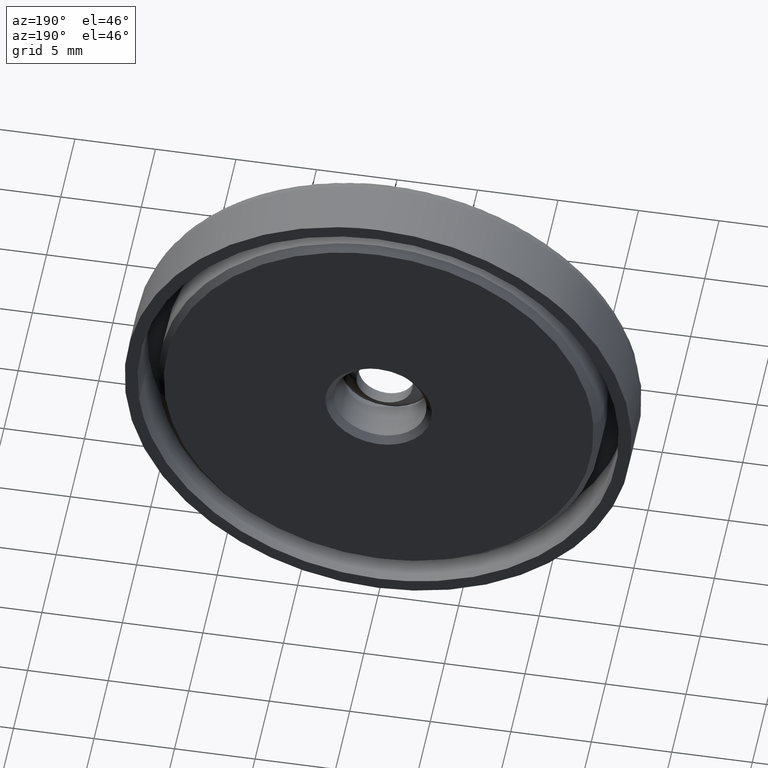
[diagram: clean part render]
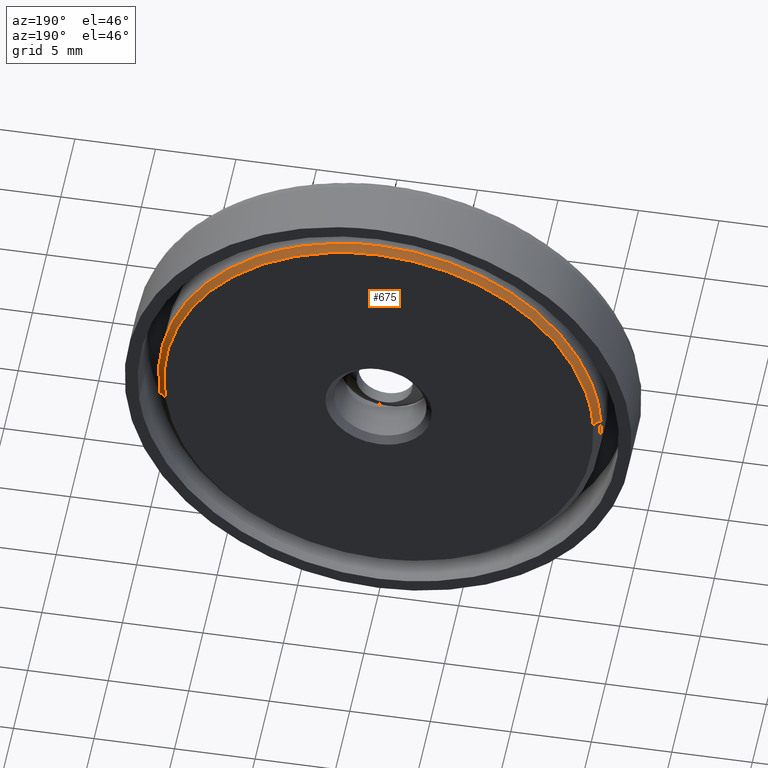
[diagram: same view with one face highlighted and labeled with its STEP entity id]
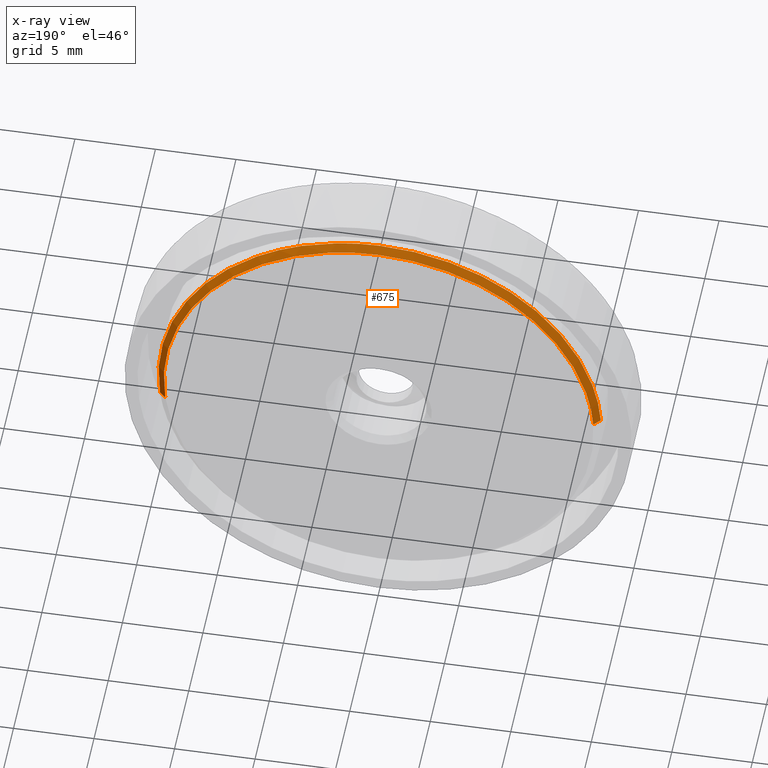
[diagram: x-ray of the same camera — body ghosted, the highlighted face saturated]
A machine part, auxiliary view. The second image highlights one B-rep face of the part: STEP entity #675.
The next image is the same camera in x-ray: the body ghosted, the highlighted face saturated — about 0% of this face is hidden behind the body in this view.
In plain terms, the highlighted face is a freeform B-spline surface patch.
Its self-contained STEP definition (entity closure, byte-faithful):
#479=CARTESIAN_POINT('',(4.834742756246989,-0.600002999999972,12.871975857687710));
#480=VERTEX_POINT('',#479);
#481=CARTESIAN_POINT('',(0.0,-0.600003000000021,13.750000000000000));
#482=VERTEX_POINT('',#481);
#483=CARTESIAN_POINT('',(4.834742756246989,-0.600002999999972,12.871975857687707));
#484=CARTESIAN_POINT('',(2.497099135457337,-0.600003000000021,13.750000000000000));
#485=CARTESIAN_POINT('',(0.0,-0.600003000000021,13.750000000000000));
#493=(BOUNDED_CURVE()B_SPLINE_CURVE(2,(#483,#484,#485),.UNSPECIFIED.,.F.,.U.)B_SPLINE_CURVE_WITH_KNOTS((3,3),(0.440284224787968,0.500000000000000),.UNSPECIFIED.)CURVE()GEOMETRIC_REPRESENTATION_ITEM()RATIONAL_B_SPLINE_CURVE((0.893499620583209,0.930038617536830,1.0))REPRESENTATION_ITEM(''));
#494=EDGE_CURVE('',#480,#482,#493,.T.);
#496=CARTESIAN_POINT('',(-13.724353478302239,-0.600003000005116,0.839417418626531));
#497=VERTEX_POINT('',#496);
#498=CARTESIAN_POINT('',(0.0,-0.600003000000021,13.750000000000000));
#499=CARTESIAN_POINT('',(-12.934708419869999,-0.600003000000021,13.749999999999998));
#500=CARTESIAN_POINT('',(-13.724353478302241,-0.600003000005116,0.839417418626531));
#508=(BOUNDED_CURVE()B_SPLINE_CURVE(2,(#498,#499,#500),.UNSPECIFIED.,.F.,.U.)B_SPLINE_CURVE_WITH_KNOTS((3,3),(0.500000000000000,0.739332962240859),.UNSPECIFIED.)CURVE()GEOMETRIC_REPRESENTATION_ITEM()RATIONAL_B_SPLINE_CURVE((1.0,0.719603993284465,0.976072041670825))REPRESENTATION_ITEM(''));
#509=EDGE_CURVE('',#482,#497,#508,.T.);
#549=CARTESIAN_POINT('',(13.653880987500790,-0.600003000005759,-1.622970726575862));
#550=VERTEX_POINT('',#549);
#551=CARTESIAN_POINT('',(13.653880987500790,-0.600003000005759,-1.622970726575862));
#552=CARTESIAN_POINT('',(13.749999999999996,-0.600003000000021,-0.814331645258995));
#553=CARTESIAN_POINT('',(13.750000000000000,-0.600003000000021,-5.695187E-016));
#554=CARTESIAN_POINT('',(13.750000000000002,-0.600003000000021,9.523385411601735));
#555=CARTESIAN_POINT('',(4.834742756246989,-0.600002999999972,12.871975857687707));
#563=(BOUNDED_CURVE()B_SPLINE_CURVE(2,(#551,#552,#553,#554,#555),.UNSPECIFIED.,.F.,.U.)B_SPLINE_CURVE_WITH_KNOTS((3,2,3),(0.229562473514536,0.250000000000000,0.440284224787968),.UNSPECIFIED.)CURVE()GEOMETRIC_REPRESENTATION_ITEM()RATIONAL_B_SPLINE_CURVE((0.956026754185714,0.976055948332349,1.0,0.777068163649718,0.893499620583209))REPRESENTATION_ITEM(''));
#564=EDGE_CURVE('',#550,#480,#563,.T.);
#604=CARTESIAN_POINT('',(13.246747081691307,-0.190003000000021,-1.574576690321159));
#605=CARTESIAN_POINT('',(13.291810790084398,-0.190003000000021,-1.195460480030623));
#606=CARTESIAN_POINT('',(13.315118210947700,-0.190003000000021,-0.814387517394993));
#607=CARTESIAN_POINT('',(14.129505728342696,-0.190003000000021,12.500730693552711));
#608=CARTESIAN_POINT('',(0.814387517394992,-0.190003000000021,13.315118210947700));
#609=CARTESIAN_POINT('',(-12.500730693552711,-0.190003000000021,14.129505728342696));
#610=CARTESIAN_POINT('',(-13.315118210947700,-0.190003000000021,0.814387517394992));
#611=CARTESIAN_POINT('',(13.664059335145645,-0.610253000000021,-1.624180577435662));
#612=CARTESIAN_POINT('',(13.710542685476680,-0.610253000000021,-1.233121069740733));
#613=CARTESIAN_POINT('',(13.734584359984490,-0.610253000000021,-0.840043166134516));
#614=CARTESIAN_POINT('',(14.574627526119013,-0.610253000000021,12.894541193849980));
#615=CARTESIAN_POINT('',(0.840043166134516,-0.610253000000021,13.734584359984490));
#616=CARTESIAN_POINT('',(-12.894541193849980,-0.610253000000021,14.574627526119013));
#617=CARTESIAN_POINT('',(-13.734584359984490,-0.610253000000021,0.840043166134515));
#625=(BOUNDED_SURFACE()B_SPLINE_SURFACE(2,1,((#604,#611),(#605,#612),(#606,#613),(#607,#614),(#608,#615),(#609,#616),(#610,#617)),.UNSPECIFIED.,.F.,.F.,.U.)B_SPLINE_SURFACE_WITH_KNOTS((3,2,2,3),(2,2),(0.0,0.911949147463102,23.710677834040620,46.509406520618143),(0.0,1.0),.UNSPECIFIED.)GEOMETRIC_REPRESENTATION_ITEM()RATIONAL_B_SPLINE_SURFACE(((0.977505800795127,0.977505800795127),(0.988284271247462,0.988284271247462),(1.0,1.0),(0.707106781186548,0.707106781186548),(1.0,1.0),(0.707106781186548,0.707106781186548),(1.0,1.0)))REPRESENTATION_ITEM('')SURFACE());
#626=ORIENTED_EDGE('',*,*,#564,.F.);
#627=CARTESIAN_POINT('',(13.256677176955099,-0.200003000002446,-1.575757032686965));
#628=VERTEX_POINT('',#627);
#629=CARTESIAN_POINT('',(13.256677176955099,-0.200003000002446,-1.575757032686965));
#630=CARTESIAN_POINT('',(13.653880987500790,-0.600003000005759,-1.622970726575862));
#631=QUASI_UNIFORM_CURVE('',1,(#629,#630),.UNSPECIFIED.,.F.,.U.);
#632=EDGE_CURVE('',#628,#550,#631,.T.);
#633=ORIENTED_EDGE('',*,*,#632,.F.);
#634=CARTESIAN_POINT('',(0.0,-0.200003000000021,13.350000000000000));
#635=VERTEX_POINT('',#634);
#636=CARTESIAN_POINT('',(13.256677176955096,-0.200003000002446,-1.575757032686965));
#637=CARTESIAN_POINT('',(13.350000000000005,-0.200003000000021,-0.790641997372154));
#638=CARTESIAN_POINT('',(13.350000000000000,-0.200003000000021,-5.695187E-016));
#639=CARTESIAN_POINT('',(13.350000000000000,-0.200003000000021,13.350000000000000));
#640=CARTESIAN_POINT('',(0.0,-0.200003000000021,13.350000000000000));
#648=(BOUNDED_CURVE()B_SPLINE_CURVE(2,(#636,#637,#638,#639,#640),.UNSPECIFIED.,.F.,.U.)B_SPLINE_CURVE_WITH_KNOTS((3,2,3),(0.229562473515161,0.250000000000000,0.500000000000000),.UNSPECIFIED.)CURVE()GEOMETRIC_REPRESENTATION_ITEM()RATIONAL_B_SPLINE_CURVE((0.956026754186939,0.976055948333081,1.0,0.707106781186548,1.0))REPRESENTATION_ITEM(''));
#649=EDGE_CURVE('',#628,#635,#648,.T.);
#650=ORIENTED_EDGE('',*,*,#649,.T.);
#651=CARTESIAN_POINT('',(-13.325099558935531,-0.200003000006740,0.814998002841396));
#652=VERTEX_POINT('',#651);
#653=CARTESIAN_POINT('',(0.0,-0.200003000000021,13.350000000000000));
#654=CARTESIAN_POINT('',(-12.558425993095412,-0.200003000000021,13.350000000000001));
#655=CARTESIAN_POINT('',(-13.325099558935534,-0.200003000006740,0.814998002841396));
#663=(BOUNDED_CURVE()B_SPLINE_CURVE(2,(#653,#654,#655),.UNSPECIFIED.,.F.,.U.)B_SPLINE_CURVE_WITH_KNOTS((3,3),(0.500000000000000,0.739332962240657),.UNSPECIFIED.)CURVE()GEOMETRIC_REPRESENTATION_ITEM()RATIONAL_B_SPLINE_CURVE((1.0,0.719603993284702,0.976072041670392))REPRESENTATION_ITEM(''));
#664=EDGE_CURVE('',#635,#652,#663,.T.);
#665=ORIENTED_EDGE('',*,*,#664,.T.);
#666=CARTESIAN_POINT('',(-13.325099558935531,-0.200003000006740,0.814998002841396));
#667=CARTESIAN_POINT('',(-13.724353478302239,-0.600003000005116,0.839417418626531));
#668=QUASI_UNIFORM_CURVE('',1,(#666,#667),.UNSPECIFIED.,.F.,.U.);
#669=EDGE_CURVE('',#652,#497,#668,.T.);
#670=ORIENTED_EDGE('',*,*,#669,.T.);
#671=ORIENTED_EDGE('',*,*,#509,.F.);
#672=ORIENTED_EDGE('',*,*,#494,.F.);
#673=EDGE_LOOP('',(#626,#633,#650,#665,#670,#671,#672));
#674=FACE_OUTER_BOUND('',#673,.T.);
#675=ADVANCED_FACE('',(#674),#625,.T.);